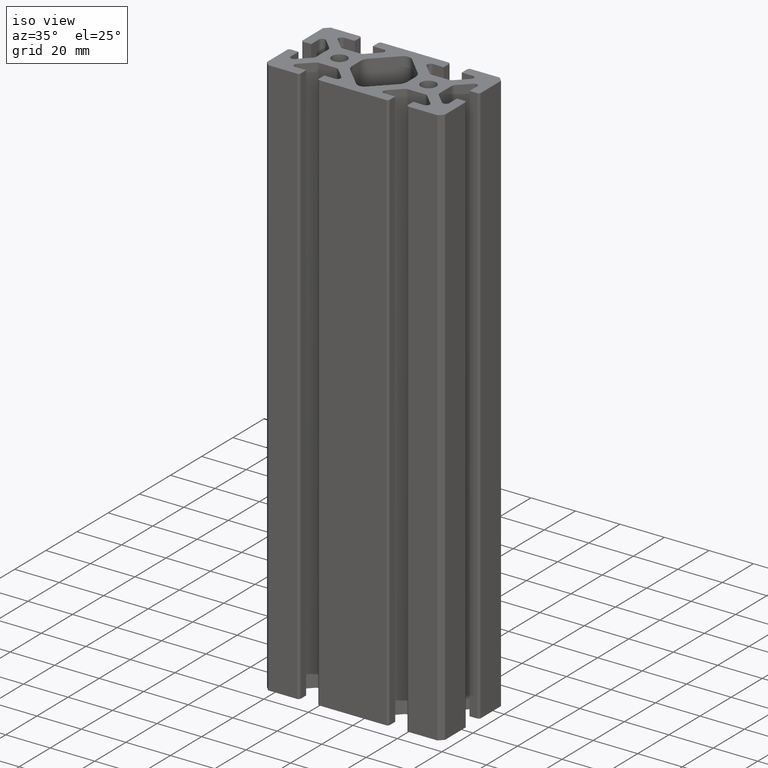
[diagram: clean part render]
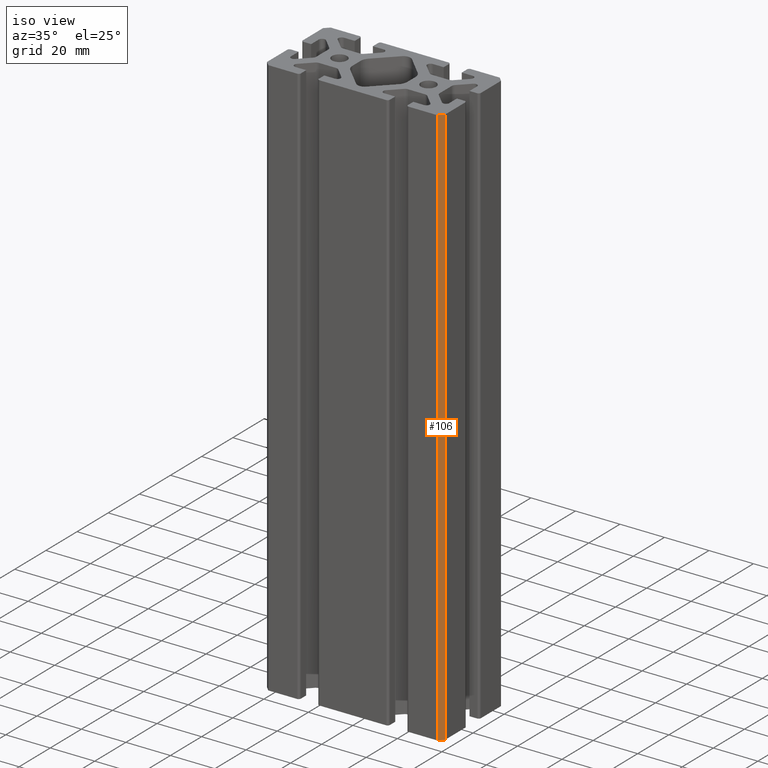
[diagram: same view with one face highlighted and labeled with its STEP entity id]
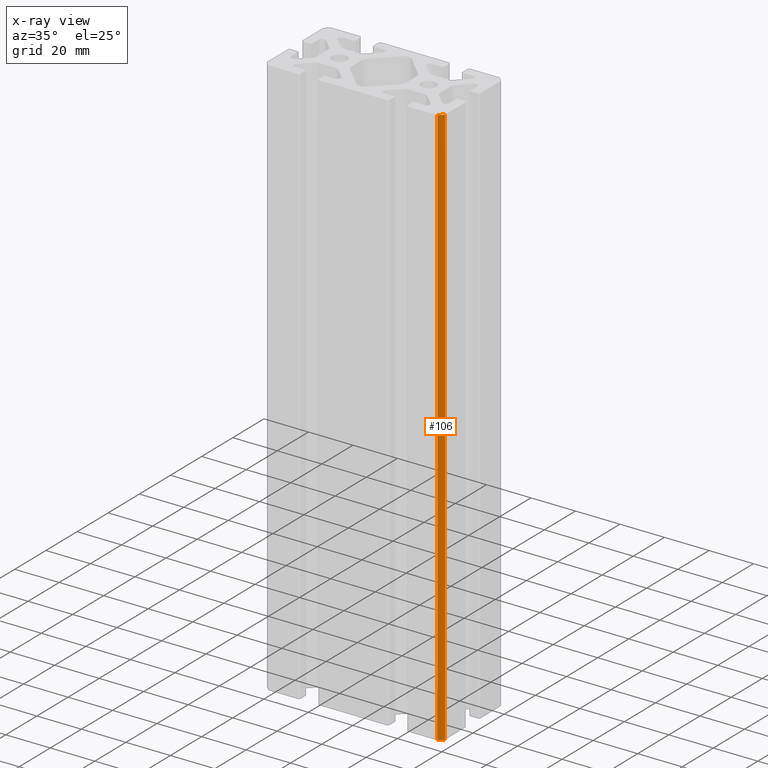
[diagram: x-ray of the same camera — body ghosted, the highlighted face saturated]
A machine part, iso view. The second image highlights one B-rep face of the part: STEP entity #106.
The next image is the same camera in x-ray: the body ghosted, the highlighted face saturated — about 0% of this face is hidden behind the body in this view.
In plain terms, the highlighted planar face has unit normal (0.7071, -0.7071, 0).
Its self-contained STEP definition (entity closure, byte-faithful):
#54 = DIRECTION ( 'NONE',  ( -0.000000000000000000, -0.000000000000000000, -1.000000000000000000 ) ) ;
#76 = VECTOR ( 'NONE', #532, 1000.000000000000114 ) ;
#106 = ADVANCED_FACE ( 'NONE', ( #1729 ), #981, .T. ) ;
#159 = VERTEX_POINT ( 'NONE', #1296 ) ;
#270 = LINE ( 'NONE', #291, #2947 ) ;
#291 = CARTESIAN_POINT ( 'NONE',  ( 38.00025520575574234, -19.99999999999999645, 127.0000000000000000 ) ) ;
#479 = ORIENTED_EDGE ( 'NONE', *, *, #1977, .F. ) ;
#532 = DIRECTION ( 'NONE',  ( -0.7071068214167161026, -0.7071067409563764894, 0.000000000000000000 ) ) ;
#725 = CARTESIAN_POINT ( 'NONE',  ( 40.00000000000000711, -18.00025543330288613, 127.0000000000000000 ) ) ;
#746 = CARTESIAN_POINT ( 'NONE',  ( 29.00012544088932032, -29.00012874075878244, 127.0000000000000000 ) ) ;
#757 = EDGE_LOOP ( 'NONE', ( #479, #2936, #972, #2534 ) ) ;
#843 = VERTEX_POINT ( 'NONE', #3363 ) ;
#845 = DIRECTION ( 'NONE',  ( -0.000000000000000000, -0.000000000000000000, -1.000000000000000000 ) ) ;
#891 = CARTESIAN_POINT ( 'NONE',  ( 29.00012544088932032, -29.00012874075878244, 127.0000000000000000 ) ) ;
#972 = ORIENTED_EDGE ( 'NONE', *, *, #3492, .T. ) ;
#981 = PLANE ( 'NONE',  #2719 ) ;
#1049 = DIRECTION ( 'NONE',  ( 0.7071068214167161026, 0.7071067409563764894, 0.000000000000000000 ) ) ;
#1130 = VERTEX_POINT ( 'NONE', #2992 ) ;
#1296 = CARTESIAN_POINT ( 'NONE',  ( 38.00025520575574234, -19.99999999999999645, -127.0000000000000000 ) ) ;
#1320 = CARTESIAN_POINT ( 'NONE',  ( 29.00012544088932032, -29.00012874075878244, -127.0000000000000000 ) ) ;
#1729 = FACE_OUTER_BOUND ( 'NONE', #757, .T. ) ;
#1730 = EDGE_CURVE ( 'NONE', #2976, #159, #270, .T. ) ;
#1977 = EDGE_CURVE ( 'NONE', #1130, #159, #2577, .T. ) ;
#2299 = VECTOR ( 'NONE', #3152, 1000.000000000000114 ) ;
#2534 = ORIENTED_EDGE ( 'NONE', *, *, #1730, .T. ) ;
#2577 = LINE ( 'NONE', #1320, #2299 ) ;
#2719 = AXIS2_PLACEMENT_3D ( 'NONE', #746, #3264, #1049 ) ;
#2730 = EDGE_CURVE ( 'NONE', #843, #1130, #3764, .T. ) ;
#2936 = ORIENTED_EDGE ( 'NONE', *, *, #2730, .F. ) ;
#2947 = VECTOR ( 'NONE', #845, 1000.000000000000000 ) ;
#2976 = VERTEX_POINT ( 'NONE', #3001 ) ;
#2992 = CARTESIAN_POINT ( 'NONE',  ( 40.00000000000000711, -18.00025543330288613, -127.0000000000000000 ) ) ;
#3001 = CARTESIAN_POINT ( 'NONE',  ( 38.00025520575574234, -19.99999999999999645, 127.0000000000000000 ) ) ;
#3152 = DIRECTION ( 'NONE',  ( -0.7071068214167161026, -0.7071067409563764894, 0.000000000000000000 ) ) ;
#3264 = DIRECTION ( 'NONE',  ( 0.7071067409563766004, -0.7071068214167162136, 0.000000000000000000 ) ) ;
#3363 = CARTESIAN_POINT ( 'NONE',  ( 40.00000000000000711, -18.00025543330288613, 127.0000000000000000 ) ) ;
#3492 = EDGE_CURVE ( 'NONE', #843, #2976, #3622, .T. ) ;
#3500 = VECTOR ( 'NONE', #54, 1000.000000000000000 ) ;
#3622 = LINE ( 'NONE', #891, #76 ) ;
#3764 = LINE ( 'NONE', #725, #3500 ) ;